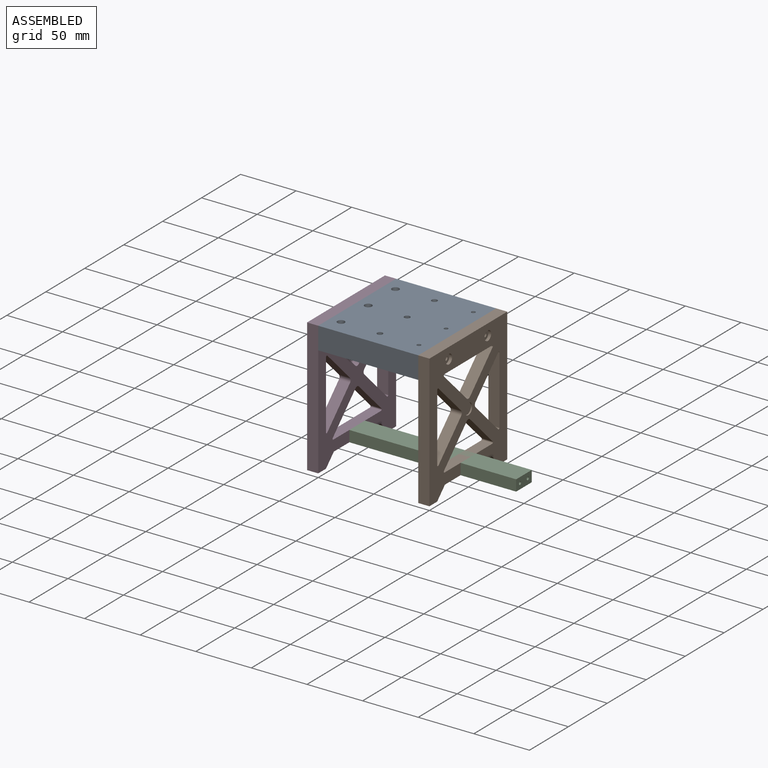
[diagram: assembled view]
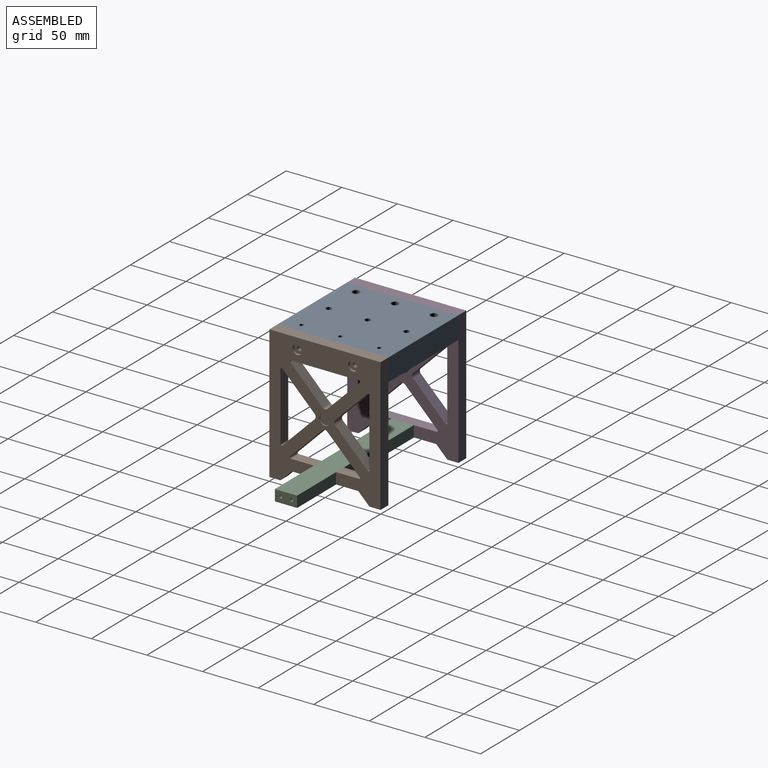
[diagram: assembled view, second angle]
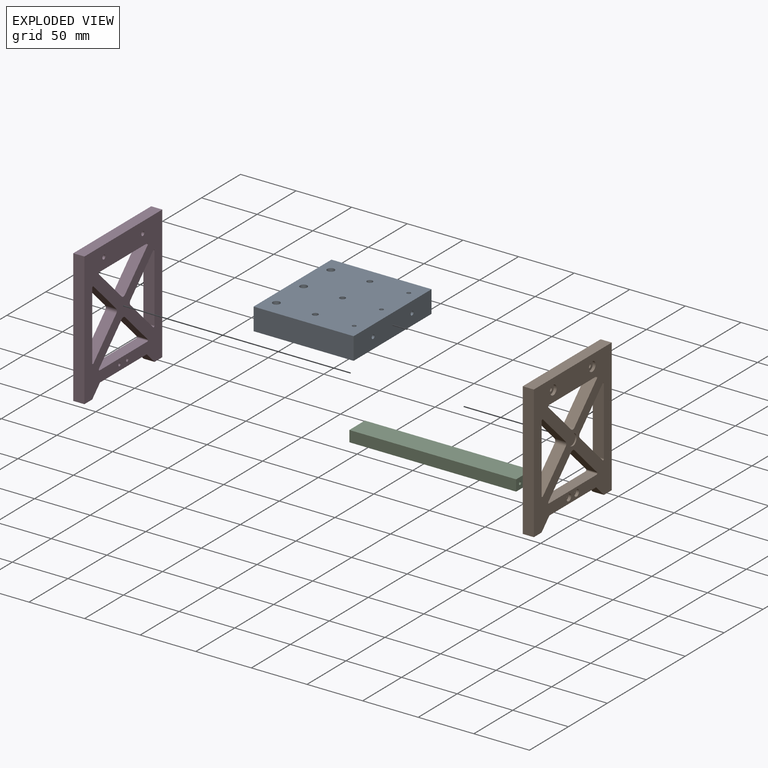
[diagram: exploded view]
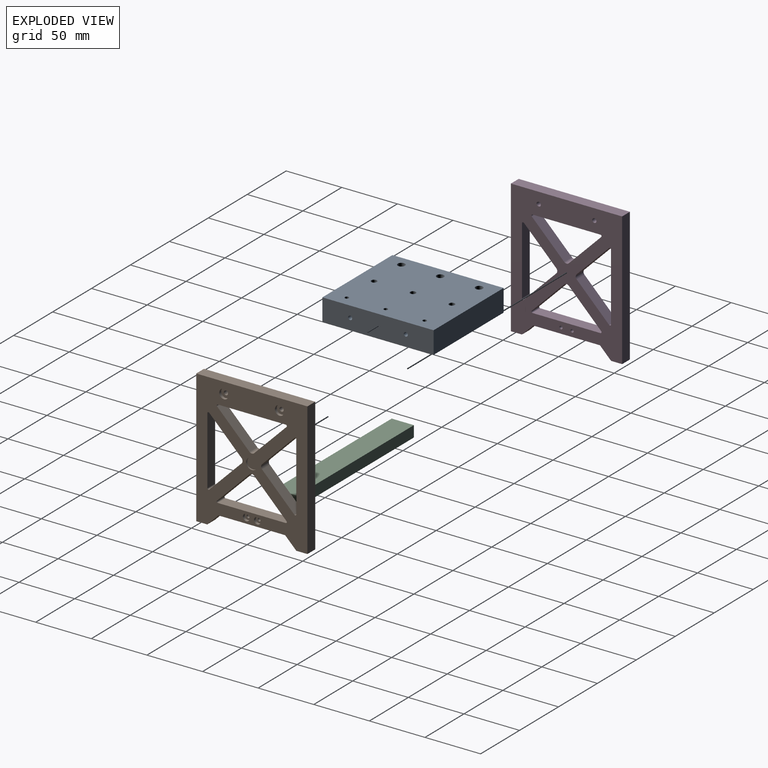
[diagram: exploded view, second angle]
ASSEMBLY  parts=4 mates=3
PART A: 23 faces, bbox 90x100x20 mm
  f0: plane 90x20mm, normal (0,-1,0), area 1800mm2, adj f1,f3,f4,f5
  f1: plane 100x20mm, normal (1,0,0), area 1979.6mm2, adj f0,f2,f4,f5,f20,f22
  f2: plane 90x20mm, normal (0,1,0), area 1800mm2, adj f1,f3,f4,f5
  f3: plane 100x20mm, normal (-1,0,0), area 1979.6mm2, adj f0,f2,f4,f5,f16,f18
  f4: plane 100x90mm, normal (0,0,-1), area 8812.7mm2, adj f0,f1,f2,f3,f6,f7,f8,f9
  f5: plane 100x90mm, normal (0,0,1), area 8812.7mm2, adj f0,f1,f2,f3,f6,f7,f8,f9
  f6: cylinder r=3.25mm len=20mm, axis (0,0,1), area 408.4mm2, adj f4,f5
  f7: cylinder r=3.25mm len=20mm, axis (0,0,1), area 408.4mm2, adj f4,f5
  f8: cylinder r=3.25mm len=20mm, axis (0,0,1), area 408.4mm2, adj f4,f5
  f9: cylinder r=2.5mm len=20mm, axis (0,0,1), area 314.2mm2, adj f4,f5
  f10: cylinder r=2.5mm len=20mm, axis (0,0,1), area 314.2mm2, adj f4,f5
  f11: cylinder r=2.5mm len=20mm, axis (0,0,1), area 314.2mm2, adj f4,f5
  f12: cylinder r=1.75mm len=20mm, axis (0,0,1), area 219.9mm2, adj f4,f5
  f13: cylinder r=1.75mm len=20mm, axis (0,0,1), area 219.9mm2, adj f4,f5
  f14: cylinder r=1.75mm len=20mm, axis (0,0,1), area 219.9mm2, adj f4,f5
  f15: cone r=0mm half-angle=59deg, axis (-1,0,0), area 11.9mm2, adj f16
  f16: cylinder r=1.8mm len=16mm, axis (-1,0,0), area 181mm2, adj f3,f15
  f17: cone r=0mm half-angle=59deg, axis (-1,0,0), area 11.9mm2, adj f18
  f18: cylinder r=1.8mm len=16mm, axis (-1,0,0), area 181mm2, adj f3,f17
  f19: cone r=0mm half-angle=59deg, axis (1,0,0), area 11.9mm2, adj f20
  f20: cylinder r=1.8mm len=16mm, axis (1,0,0), area 181mm2, adj f1,f19
  f21: cone r=0mm half-angle=59deg, axis (1,0,0), area 11.9mm2, adj f22
  f22: cylinder r=1.8mm len=16mm, axis (1,0,0), area 181mm2, adj f1,f21
PART B: 48 faces, bbox 10x100x120 mm
  f0: plane 10x9.95mm, normal (0,0,-1), area 99.5mm2, adj f1,f23,f24,f25
  f1: plane 120x10mm, normal (0,1,0), area 1200mm2, adj f0,f2,f24,f25
  f2: plane 100x10mm, normal (0,0,1), area 1000mm2, adj f1,f3,f24,f25
  f3: plane 120x10mm, normal (0,-1,0), area 1200mm2, adj f2,f4,f24,f25
  f4: plane 10x10mm, normal (0,0,-1), area 100mm2, adj f3,f5,f24,f25
  f5: plane 10.05x10mm, normal (0,0.71,-0.71), area 141.8mm2, adj f4,f6,f24,f25
  f6: plane 60x10mm, normal (0,0,-1), area 600mm2, adj f5,f23,f24,f25
  f7: plane 61.03x10mm, normal (0,0,-1), area 610.3mm2, adj f24,f25,f32,f33
  f8: plane 29.1x29.1mm, normal (0,-0.71,0.71), area 411.5mm2, adj f9,f24,f25,f32
  f9: cylinder r=3mm len=10mm, axis (-1,0,0), area 47.1mm2, adj f8,f19,f24,f25
  f10: plane 29.1x29.1mm, normal (0,-0.71,0.71), area 411.5mm2, adj f20,f24,f25,f30
  f11: plane 61.03x10mm, normal (0,1,0), area 610.3mm2, adj f24,f25,f30,f31
  f12: plane 29.1x29.1mm, normal (0,-0.71,-0.71), area 411.5mm2, adj f20,f24,f25,f31
  f13: plane 61.03x10mm, normal (0,-1,0), area 610.3mm2, adj f24,f25,f28,f29
  f14: plane 29.1x29.1mm, normal (0,0.71,0.71), area 411.5mm2, adj f15,f24,f25,f28
  f15: cylinder r=3mm len=10mm, axis (-1,0,0), area 47.1mm2, adj f14,f21,f24,f25
  f16: plane 29.1x29.1mm, normal (0,-0.71,-0.71), area 411.5mm2, adj f22,f24,f25,f26
  f17: plane 61.03x10mm, normal (0,0,1), area 610.3mm2, adj f24,f25,f26,f27
  f18: plane 29.1x29.1mm, normal (0,0.71,-0.71), area 411.5mm2, adj f22,f24,f25,f27
  f19: plane 29.1x29.1mm, normal (0,0.71,0.71), area 411.5mm2, adj f9,f24,f25,f33
  f20: cylinder r=3mm len=10mm, axis (-1,0,0), area 47.1mm2, adj f10,f12,f24,f25
  f21: plane 29.1x29.1mm, normal (0,0.71,-0.71), area 411.5mm2, adj f15,f24,f25,f29
  f22: cylinder r=3mm len=10mm, axis (-1,0,0), area 47.1mm2, adj f16,f18,f24,f25
  f23: plane 10x10mm, normal (0,-0.71,-0.71), area 141.4mm2, adj f0,f6,f24,f25
  f24: plane 120x100mm, normal (1,0,0), area 6945.1mm2, adj f0,f1,f2,f3,f4,f5,f6,f7
  f25: plane 120x100mm, normal (-1,0,0), area 6731.5mm2, adj f0,f1,f2,f3,f4,f5,f6,f7
  f26: cylinder r=1mm len=10mm, axis (1,0,0), area 23.6mm2, adj f16,f17,f24,f25
  f27: cylinder r=1mm len=10mm, axis (1,0,0), area 23.6mm2, adj f17,f18,f24,f25
  f28: cylinder r=1mm len=10mm, axis (1,0,0), area 23.6mm2, adj f13,f14,f24,f25
  f29: cylinder r=1mm len=10mm, axis (-1,0,0), area 23.6mm2, adj f13,f21,f24,f25
  f30: cylinder r=1mm len=10mm, axis (-1,0,0), area 23.6mm2, adj f10,f11,f24,f25
  f31: cylinder r=1mm len=10mm, axis (1,0,0), area 23.6mm2, adj f11,f12,f24,f25
  f32: cylinder r=1mm len=10mm, axis (1,0,0), area 23.6mm2, adj f7,f8,f24,f25
  f33: cylinder r=1mm len=10mm, axis (1,0,0), area 23.6mm2, adj f7,f19,f24,f25
  f34: cylinder r=1.9mm len=7.5mm, axis (-1,0,0), area 89.5mm2, adj f24,f35
  f35: plane 8.5x8.5mm, normal (-1,0,0), area 45.4mm2, adj f34,f36
  f36: cylinder r=4.25mm len=8.5mm, axis (-1,0,0), area 66.8mm2, adj f25,f35
  f37: cylinder r=1.9mm len=7.5mm, axis (-1,0,0), area 89.5mm2, adj f24,f38
  f38: plane 8.5x8.5mm, normal (-1,0,0), area 45.4mm2, adj f37,f39
  f39: cylinder r=4.25mm len=8.5mm, axis (-1,0,0), area 66.8mm2, adj f25,f38
  f40: cylinder r=5mm len=10mm, axis (-1,0,0), area 37.7mm2, adj f25,f41
  f41: plane 10x10mm, normal (-1,0,0), area 78.5mm2, adj f40
  f42: cylinder r=1.4mm len=7.5mm, axis (-1,0,0), area 66mm2, adj f24,f43
  f43: plane 6x6mm, normal (-1,0,0), area 22.1mm2, adj f42,f44
  f44: cylinder r=3mm len=6mm, axis (-1,0,0), area 47.1mm2, adj f25,f43
  f45: cylinder r=1.4mm len=7.5mm, axis (-1,0,0), area 66mm2, adj f24,f46
  f46: plane 6x6mm, normal (-1,0,0), area 22.1mm2, adj f45,f47
  f47: cylinder r=3mm len=6mm, axis (-1,0,0), area 47.1mm2, adj f25,f46
PART C: 14 faces, bbox 150x20x10 mm
  f0: plane 150x10mm, normal (0,-1,0), area 1500mm2, adj f1,f3,f4,f5
  f1: plane 20x10mm, normal (1,0,0), area 187.7mm2, adj f0,f2,f4,f5,f11,f13
  f2: plane 150x10mm, normal (0,1,0), area 1500mm2, adj f1,f3,f4,f5
  f3: plane 20x10mm, normal (-1,0,0), area 187.7mm2, adj f0,f2,f4,f5,f7,f9
  f4: plane 150x20mm, normal (0,0,1), area 3000mm2, adj f0,f1,f2,f3
  f5: plane 150x20mm, normal (0,0,-1), area 3000mm2, adj f0,f1,f2,f3
  f6: cone r=0mm half-angle=59deg, axis (-1,0,0), area 7.2mm2, adj f7
  f7: cylinder r=1.4mm len=7mm, axis (-1,0,0), area 61.6mm2, adj f3,f6
  f8: cone r=0mm half-angle=59deg, axis (-1,0,0), area 7.2mm2, adj f9
  f9: cylinder r=1.4mm len=7mm, axis (-1,0,0), area 61.6mm2, adj f3,f8
  f10: cone r=0mm half-angle=59deg, axis (1,0,0), area 7.2mm2, adj f11
  f11: cylinder r=1.4mm len=7mm, axis (1,0,0), area 61.6mm2, adj f1,f10
  f12: cone r=0mm half-angle=59deg, axis (1,0,0), area 7.2mm2, adj f13
  f13: cylinder r=1.4mm len=7mm, axis (1,0,0), area 61.6mm2, adj f1,f12
PART D: same geometry as B
PLACE A t=(-5,0,110)mm
PLACE B rot(axis=(0,0,1),180deg) t=(50,0,50)mm
PLACE C t=(25,0,0)mm
PLACE D t=(-60,0,50)mm
MATE fastened B.f37 <-> A.f17  axis (-1,0,0) through (40,25,100)mm
MATE fastened D.f42 <-> C.f6  axis (1,0,0) through (-50,-5,5)mm
MATE fastened A.f15 <-> D.f37  axis (-1,0,0) through (-50,-25,100)mm
